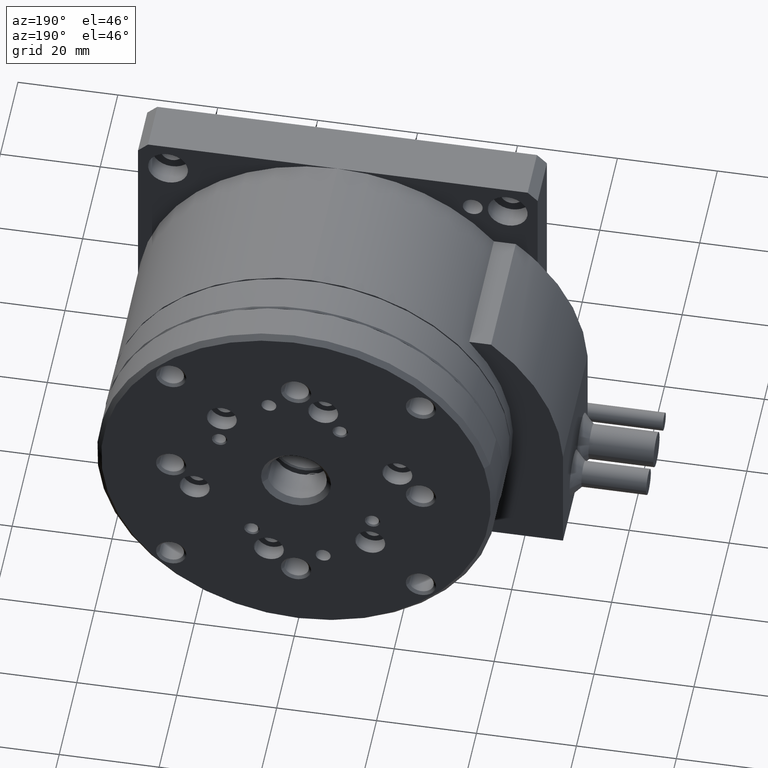
[diagram: clean part render]
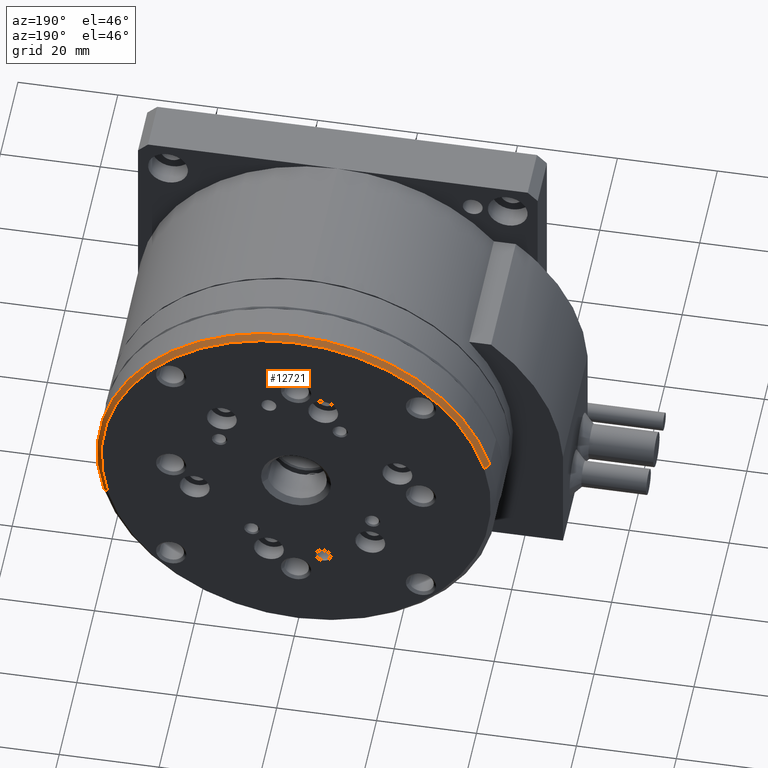
[diagram: same view with one face highlighted and labeled with its STEP entity id]
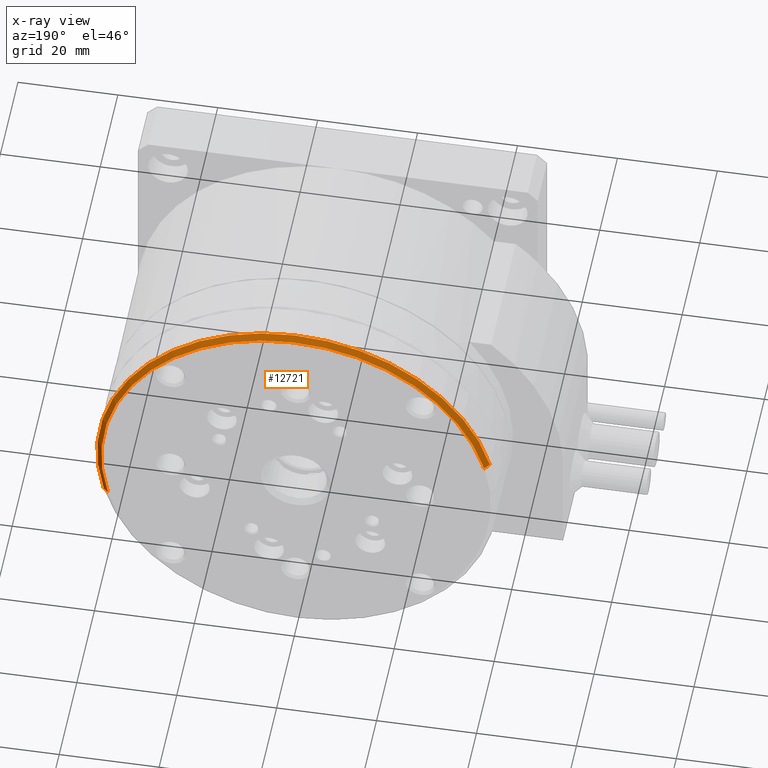
[diagram: x-ray of the same camera — body ghosted, the highlighted face saturated]
A machine part, auxiliary view. The second image highlights one B-rep face of the part: STEP entity #12721.
The next image is the same camera in x-ray: the body ghosted, the highlighted face saturated — about 0% of this face is hidden behind the body in this view.
In plain terms, the highlighted conical surface has half-angle 45 deg.
Its self-contained STEP definition (entity closure, byte-faithful):
#792 = EDGE_CURVE ( 'NONE', #16698, #4462, #22686, .T. ) ;
#1561 = CARTESIAN_POINT ( 'NONE',  ( 40.00000000000001400, 57.00000000000000700, 39.99999999999998600 ) ) ;
#2341 = FACE_OUTER_BOUND ( 'NONE', #20372, .T. ) ;
#3841 = ORIENTED_EDGE ( 'NONE', *, *, #11382, .T. ) ;
#3898 = CONICAL_SURFACE ( 'NONE', #22073, 39.00000000000002800, 0.7853981633974415100 ) ;
#4462 = VERTEX_POINT ( 'NONE', #8730 ) ;
#5094 = ORIENTED_EDGE ( 'NONE', *, *, #10411, .F. ) ;
#6379 = DIRECTION ( 'NONE',  ( -1.281445106517806600E-030, 1.000000000000000000, -1.145920134985142900E-030 ) ) ;
#6629 = VERTEX_POINT ( 'NONE', #12078 ) ;
#7083 = CARTESIAN_POINT ( 'NONE',  ( 2.328892774726372600, 58.00000000000000000, 50.09394275899846600 ) ) ;
#7213 = EDGE_CURVE ( 'NONE', #6629, #15263, #14827, .T. ) ;
#8355 = DIRECTION ( 'NONE',  ( 0.9659258262890673100, 0.0000000000000000000, -0.2588190451025249600 ) ) ;
#8730 = CARTESIAN_POINT ( 'NONE',  ( 1.362966948437328800, 57.00000000000000700, 50.35276180410098600 ) ) ;
#10411 = EDGE_CURVE ( 'NONE', #15263, #16698, #23363, .T. ) ;
#11126 = DIRECTION ( 'NONE',  ( 1.281445106517806600E-030, -1.000000000000000000, 1.145920134985142900E-030 ) ) ;
#11382 = EDGE_CURVE ( 'NONE', #6629, #4462, #11435, .T. ) ;
#11435 = LINE ( 'NONE', #7083, #19862 ) ;
#12078 = CARTESIAN_POINT ( 'NONE',  ( 2.328892774726372600, 58.00000000000000000, 50.09394275899846600 ) ) ;
#12119 = VECTOR ( 'NONE', #18782, 1000.000000000000000 ) ;
#12235 = CARTESIAN_POINT ( 'NONE',  ( 40.00000000000001400, 58.00000000000000000, 39.99999999999998600 ) ) ;
#12280 = DIRECTION ( 'NONE',  ( 1.281445106517806600E-030, -1.000000000000000000, 1.145920134985142900E-030 ) ) ;
#12564 = CARTESIAN_POINT ( 'NONE',  ( 77.67110722527364400, 58.00000000000000000, 29.90605724100150900 ) ) ;
#12721 = ADVANCED_FACE ( 'NONE', ( #2341 ), #3898, .T. ) ;
#14827 = CIRCLE ( 'NONE', #25620, 39.00000000000001400 ) ;
#15263 = VERTEX_POINT ( 'NONE', #12564 ) ;
#15728 = AXIS2_PLACEMENT_3D ( 'NONE', #1561, #11126, #23305 ) ;
#16698 = VERTEX_POINT ( 'NONE', #24786 ) ;
#18782 = DIRECTION ( 'NONE',  ( 0.6830127018922138600, -0.7071067811865523500, -0.1830127018922210200 ) ) ;
#19069 = ORIENTED_EDGE ( 'NONE', *, *, #792, .F. ) ;
#19227 = DIRECTION ( 'NONE',  ( -0.6830127018922138600, -0.7071067811865523500, 0.1830127018922209600 ) ) ;
#19862 = VECTOR ( 'NONE', #19227, 1000.000000000000100 ) ;
#20372 = EDGE_LOOP ( 'NONE', ( #5094, #21298, #3841, #19069 ) ) ;
#21298 = ORIENTED_EDGE ( 'NONE', *, *, #7213, .F. ) ;
#22073 = AXIS2_PLACEMENT_3D ( 'NONE', #22313, #12280, #24298 ) ;
#22313 = CARTESIAN_POINT ( 'NONE',  ( 40.00000000000001400, 58.00000000000000000, 39.99999999999998600 ) ) ;
#22607 = CARTESIAN_POINT ( 'NONE',  ( 77.67110722527364400, 58.00000000000000000, 29.90605724100150900 ) ) ;
#22686 = CIRCLE ( 'NONE', #15728, 40.00000000000001400 ) ;
#23305 = DIRECTION ( 'NONE',  ( 0.9659258262890670900, 0.0000000000000000000, -0.2588190451025248500 ) ) ;
#23363 = LINE ( 'NONE', #22607, #12119 ) ;
#24298 = DIRECTION ( 'NONE',  ( -0.9659258262890670900, 0.0000000000000000000, 0.2588190451025248500 ) ) ;
#24786 = CARTESIAN_POINT ( 'NONE',  ( 78.63703305156269600, 57.00000000000000700, 29.64723819589898900 ) ) ;
#25620 = AXIS2_PLACEMENT_3D ( 'NONE', #12235, #6379, #8355 ) ;